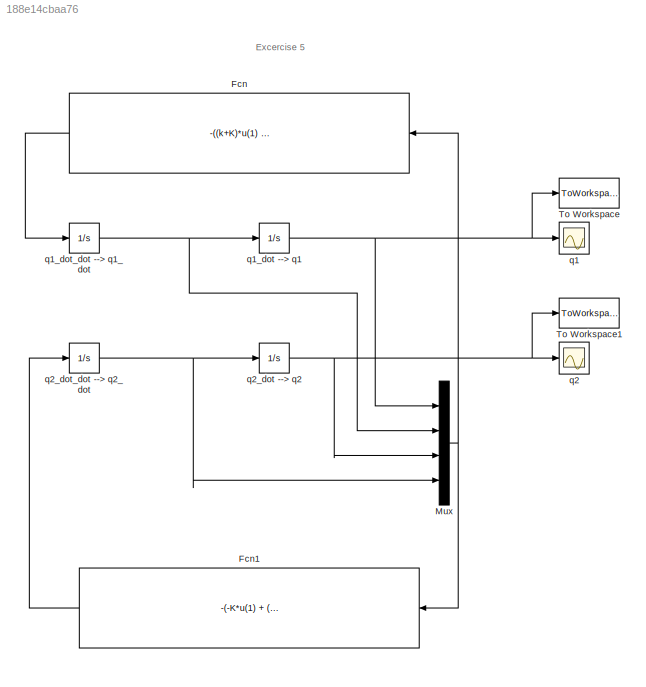
MODEL slx_188e14cbaa76
KIND model
BLOCK [Fcn] Fcn
  Expr = -((k+K)*u(1) - K*u(3) + (c+C)*u(2) - C*u(4))/m
BLOCK [Fcn] Fcn1
  Expr = -(-K*u(1) + (k+K)*u(3) - C*u(2) + (c+C)*u(4))/m
BLOCK [Mux] Mux
  DisplayOption = bar
  Ports = [4, 1]
BLOCK [ToWorkspace] To Workspace
  MaxDataPoints = inf
  Ports = [1]
  SampleTime = -1
  SaveFormat = Timeseries
  VariableName = q1_sim
BLOCK [ToWorkspace] To Workspace1
  MaxDataPoints = inf
  Ports = [1]
  SampleTime = -1
  SaveFormat = Timeseries
  VariableName = q2_sim
BLOCK [Scope] q1
  DataFormat = StructureWithTime
  Floating = off
  NumInputPorts = 1
  Ports = [1]
  SampleTime = 0
  ShowLegends = off
BLOCK [Integrator] q1_dot --> q1
  InitialCondition = q1_0
  Ports = [1, 1]
BLOCK [Integrator] q1_dot_dot --> q1_dot
  InitialCondition = q1_dot_0
  Ports = [1, 1]
BLOCK [Scope] q2
  DataFormat = StructureWithTime
  Floating = off
  NumInputPorts = 1
  Ports = [1]
  SampleTime = 0
  SaveName = ScopeData1
  ShowLegends = off
BLOCK [Integrator] q2_dot --> q2
  InitialCondition = q2_0
  Ports = [1, 1]
BLOCK [Integrator] q2_dot_dot --> q2_dot
  InitialCondition = q2_dot_0
  Ports = [1, 1]
ANNOTATION (root): Excercise 5
LINE Fcn1:1 -> q2_dot_dot --> q2_dot:1
LINE Fcn:1 -> q1_dot_dot --> q1_dot:1
NET Mux:1 -> Fcn1:1, Fcn:1
NET q1_dot --> q1:1 -> Mux:1, To Workspace:1, q1:1
NET q1_dot_dot --> q1_dot:1 -> Mux:2, q1_dot --> q1:1
NET q2_dot --> q2:1 -> Mux:3, To Workspace1:1, q2:1
NET q2_dot_dot --> q2_dot:1 -> Mux:4, q2_dot --> q2:1
note: NET lines group one-source signal fan-out (src -> all destinations, sorted); 1:1 wires keep LINE
